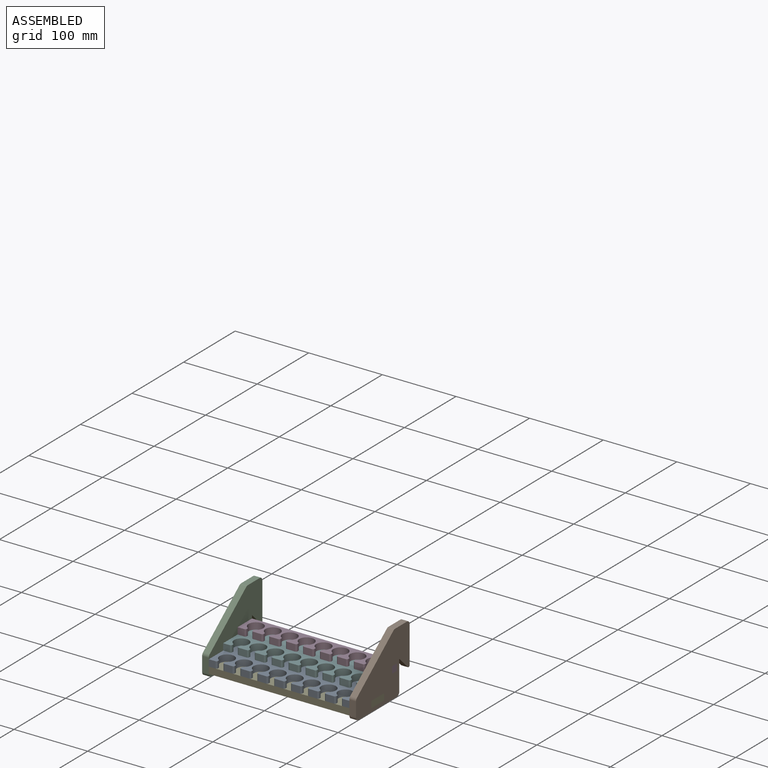
[diagram: assembled view]
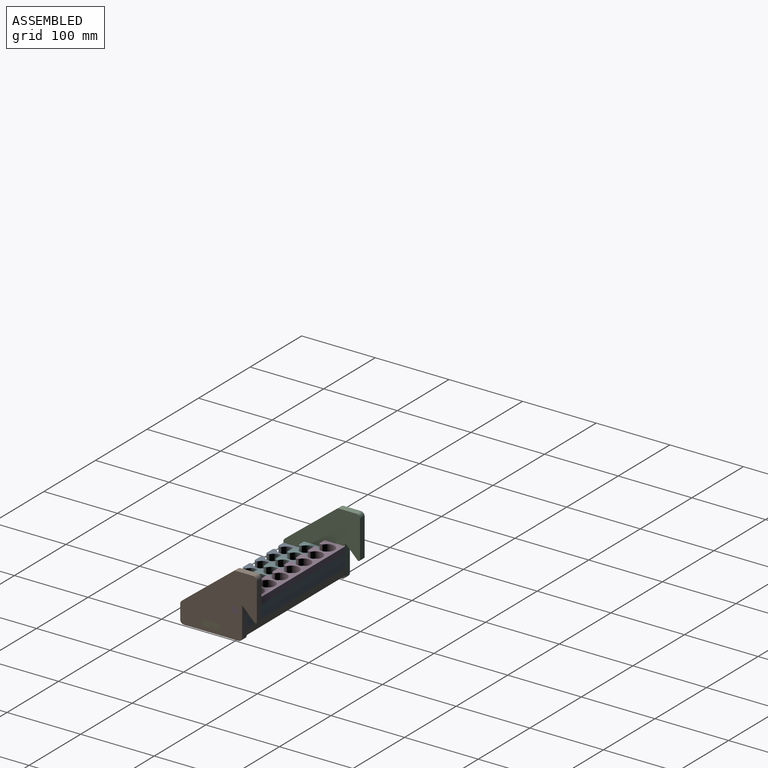
[diagram: assembled view, second angle]
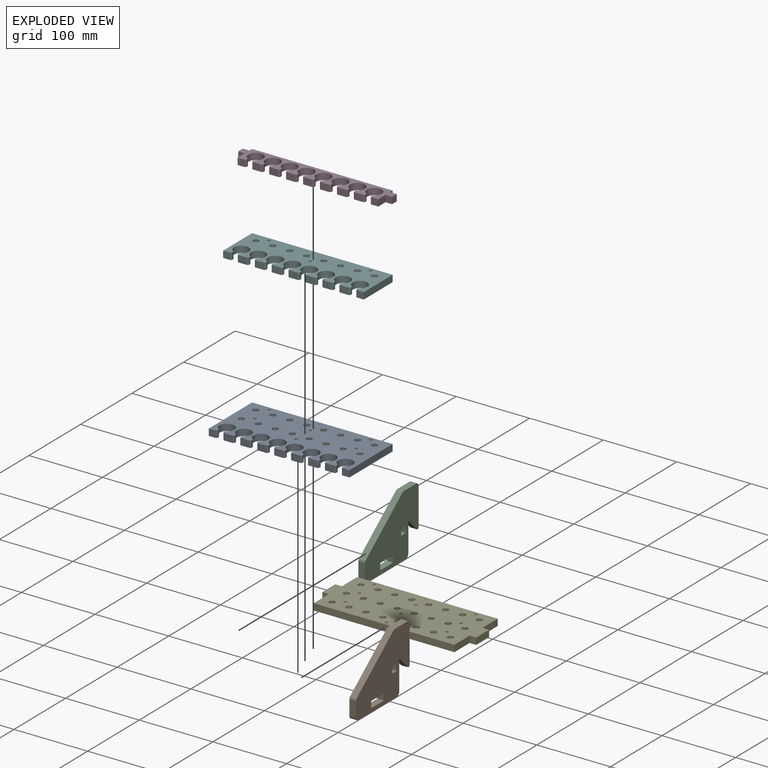
[diagram: exploded view]
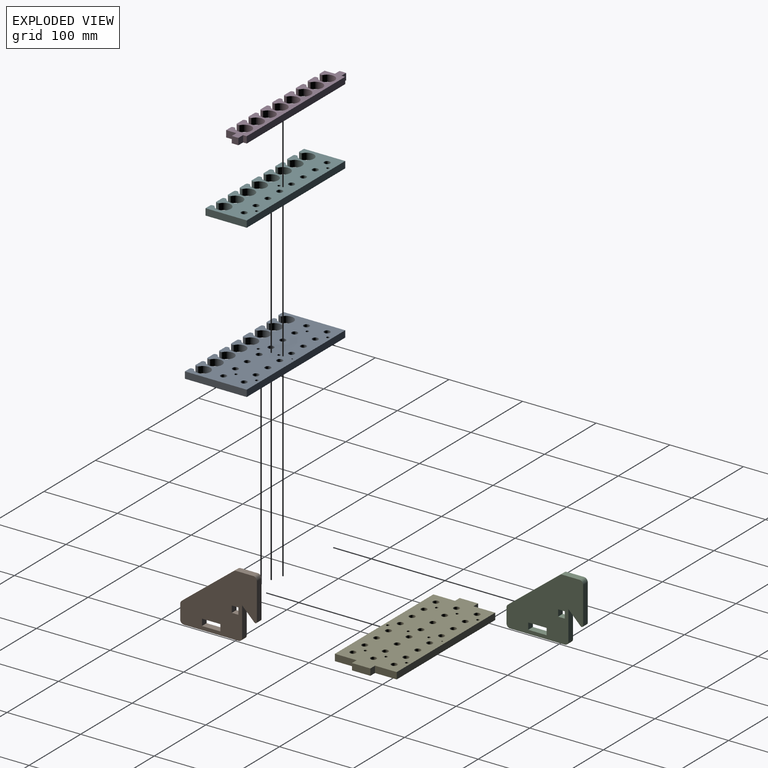
[diagram: exploded view, second angle]
ASSEMBLY  parts=6 mates=5
PART A: 99 faces, bbox 191x84x9 mm
  f0: plane 84x9mm, normal (1,0,0), area 756mm2, adj f1,f3,f4,f35
  f1: plane 191x84mm, normal (0,0,-1), area 12319.2mm2, adj f0,f2,f4,f5,f6,f7,f8,f9
  f2: plane 84x9mm, normal (-1,0,0), area 756mm2, adj f1,f3,f4,f27
  f3: plane 191x84mm, normal (0,0,1), area 12356.9mm2, adj f0,f2,f4,f5,f6,f7,f8,f9
  f4: plane 191x9mm, normal (0,1,0), area 1719mm2, adj f0,f1,f2,f3
  f5: cylinder r=4mm len=9mm, axis (0,0,1), area 226.2mm2, adj f1,f3
  f6: cylinder r=4mm len=9mm, axis (0,0,1), area 226.2mm2, adj f1,f3
  f7: cylinder r=4mm len=9mm, axis (0,0,1), area 226.2mm2, adj f1,f3
  f8: cylinder r=4mm len=9mm, axis (0,0,1), area 226.2mm2, adj f1,f3
  f9: cylinder r=4mm len=9mm, axis (0,0,1), area 226.2mm2, adj f1,f3
  f10: cylinder r=4mm len=9mm, axis (0,0,1), area 226.2mm2, adj f1,f3
  f11: cylinder r=4mm len=9mm, axis (0,0,1), area 226.2mm2, adj f1,f3
  f12: cylinder r=4mm len=9mm, axis (0,0,1), area 226.2mm2, adj f1,f3
  f13: cylinder r=2mm len=9mm, axis (0,0,1), area 113.1mm2, adj f1,f3
  f14: cylinder r=2mm len=9mm, axis (0,0,1), area 113.1mm2, adj f1,f3
  f15: cylinder r=2mm len=9mm, axis (0,0,1), area 113.1mm2, adj f1,f3
  f16: cylinder r=4mm len=9mm, axis (0,0,1), area 226.2mm2, adj f1,f3
  f17: cylinder r=4mm len=9mm, axis (0,0,1), area 226.2mm2, adj f1,f3
  f18: cylinder r=4mm len=9mm, axis (0,0,1), area 226.2mm2, adj f1,f3
  f19: cylinder r=4mm len=9mm, axis (0,0,1), area 226.2mm2, adj f1,f3
  f20: cylinder r=4mm len=9mm, axis (0,0,1), area 226.2mm2, adj f1,f3
  f21: cylinder r=4mm len=9mm, axis (0,0,1), area 226.2mm2, adj f1,f3
  f22: cylinder r=4mm len=9mm, axis (0,0,1), area 226.2mm2, adj f1,f3
  f23: cylinder r=4mm len=9mm, axis (0,0,1), area 226.2mm2, adj f1,f3
  f24: cylinder r=2mm len=9mm, axis (0,0,1), area 113.1mm2, adj f1,f3
  f25: cylinder r=2mm len=9mm, axis (0,0,1), area 113.1mm2, adj f1,f3
  f26: cylinder r=2mm len=9mm, axis (0,0,1), area 113.1mm2, adj f1,f3
  f27: plane 9x9mm, normal (0,-1,0), area 81mm2, adj f1,f2,f3,f96
  f28: plane 11x9mm, normal (0,-1,0), area 99mm2, adj f1,f3,f91,f95
  f29: plane 11x9mm, normal (0,-1,0), area 99mm2, adj f1,f3,f88,f92
  f30: plane 11x9mm, normal (0,-1,0), area 99mm2, adj f1,f3,f84,f87
  f31: plane 11x9mm, normal (0,-1,0), area 99mm2, adj f1,f3,f80,f83
  f32: plane 11x9mm, normal (0,-1,0), area 99mm2, adj f1,f3,f76,f79
  f33: plane 11x9mm, normal (0,-1,0), area 99mm2, adj f1,f3,f72,f75
  f34: plane 11x9mm, normal (0,-1,0), area 99mm2, adj f1,f3,f68,f71
  f35: plane 9x9mm, normal (0,-1,0), area 81mm2, adj f0,f1,f3,f67
  f36: cylinder r=10mm len=20mm, axis (0,0,1), area 471.2mm2, adj f1,f3,f66,f69
  f37: plane 9x1.61mm, normal (1,0,0), area 14.5mm2, adj f1,f3,f68,f69
  f38: plane 9x1.61mm, normal (-1,0,0), area 14.5mm2, adj f1,f3,f66,f67
  f39: cylinder r=10mm len=20mm, axis (0,0,1), area 471.2mm2, adj f1,f3,f70,f73
  f40: plane 9x1.61mm, normal (1,0,0), area 14.5mm2, adj f1,f3,f72,f73
  f41: plane 9x1.61mm, normal (-1,0,0), area 14.5mm2, adj f1,f3,f70,f71
  f42: cylinder r=10mm len=20mm, axis (0,0,1), area 471.2mm2, adj f1,f3,f74,f77
  f43: plane 9x1.61mm, normal (1,0,0), area 14.5mm2, adj f1,f3,f76,f77
  f44: plane 9x1.61mm, normal (-1,0,0), area 14.5mm2, adj f1,f3,f74,f75
  f45: cylinder r=10mm len=20mm, axis (0,0,1), area 471.2mm2, adj f1,f3,f78,f81
  f46: plane 9x1.61mm, normal (1,0,0), area 14.5mm2, adj f1,f3,f80,f81
  f47: plane 9x1.61mm, normal (-1,0,0), area 14.5mm2, adj f1,f3,f78,f79
  f48: cylinder r=10mm len=20mm, axis (0,0,1), area 471.2mm2, adj f1,f3,f82,f85
  f49: plane 9x1.61mm, normal (1,0,0), area 14.5mm2, adj f1,f3,f84,f85
  f50: plane 9x1.61mm, normal (-1,0,0), area 14.5mm2, adj f1,f3,f82,f83
  f51: cylinder r=10mm len=20mm, axis (0,0,1), area 471.2mm2, adj f1,f3,f86,f89
  f52: plane 9x1.61mm, normal (1,0,0), area 14.5mm2, adj f1,f3,f88,f89
  f53: plane 9x1.61mm, normal (-1,0,0), area 14.5mm2, adj f1,f3,f86,f87
  f54: cylinder r=10mm len=20mm, axis (0,0,1), area 471.2mm2, adj f1,f3,f90,f93
  f55: plane 9x1.61mm, normal (1,0,0), area 14.5mm2, adj f1,f3,f90,f91
  f56: plane 9x1.61mm, normal (-1,0,0), area 14.5mm2, adj f1,f3,f92,f93
  f57: cylinder r=10mm len=20mm, axis (0,0,1), area 471.2mm2, adj f1,f3,f94,f97
  f58: plane 9x1.61mm, normal (1,0,0), area 14.5mm2, adj f1,f3,f96,f97
  f59: plane 9x1.61mm, normal (-1,0,0), area 14.5mm2, adj f1,f3,f94,f95
  f60: cone r=0mm half-angle=59deg, axis (0,0,-1), area 14.7mm2, adj f61
  f61: cylinder r=2mm len=5mm, axis (0,0,-1), area 62.8mm2, adj f1,f60
  f62: cone r=0mm half-angle=59deg, axis (0,0,-1), area 14.7mm2, adj f63
  f63: cylinder r=2mm len=5mm, axis (0,0,-1), area 62.8mm2, adj f1,f62
  f64: cone r=0mm half-angle=59deg, axis (0,0,-1), area 14.7mm2, adj f65
  f65: cylinder r=2mm len=5mm, axis (0,0,-1), area 62.8mm2, adj f1,f64
  f66: cylinder r=2mm len=9mm, axis (0,0,1), area 18.8mm2, adj f1,f3,f36,f38
  f67: cylinder r=2mm len=9mm, axis (0,0,-1), area 28.3mm2, adj f1,f3,f35,f38
  f68: cylinder r=2mm len=9mm, axis (0,0,-1), area 28.3mm2, adj f1,f3,f34,f37
  f69: cylinder r=2mm len=9mm, axis (0,0,1), area 18.8mm2, adj f1,f3,f36,f37
  f70: cylinder r=2mm len=9mm, axis (0,0,1), area 18.8mm2, adj f1,f3,f39,f41
  f71: cylinder r=2mm len=9mm, axis (0,0,-1), area 28.3mm2, adj f1,f3,f34,f41
  f72: cylinder r=2mm len=9mm, axis (0,0,-1), area 28.3mm2, adj f1,f3,f33,f40
  f73: cylinder r=2mm len=9mm, axis (0,0,1), area 18.8mm2, adj f1,f3,f39,f40
  f74: cylinder r=2mm len=9mm, axis (0,0,1), area 18.8mm2, adj f1,f3,f42,f44
  f75: cylinder r=2mm len=9mm, axis (0,0,-1), area 28.3mm2, adj f1,f3,f33,f44
  f76: cylinder r=2mm len=9mm, axis (0,0,-1), area 28.3mm2, adj f1,f3,f32,f43
  f77: cylinder r=2mm len=9mm, axis (0,0,1), area 18.8mm2, adj f1,f3,f42,f43
  f78: cylinder r=2mm len=9mm, axis (0,0,1), area 18.8mm2, adj f1,f3,f45,f47
  f79: cylinder r=2mm len=9mm, axis (0,0,-1), area 28.3mm2, adj f1,f3,f32,f47
  f80: cylinder r=2mm len=9mm, axis (0,0,-1), area 28.3mm2, adj f1,f3,f31,f46
  f81: cylinder r=2mm len=9mm, axis (0,0,1), area 18.8mm2, adj f1,f3,f45,f46
  f82: cylinder r=2mm len=9mm, axis (0,0,1), area 18.8mm2, adj f1,f3,f48,f50
  f83: cylinder r=2mm len=9mm, axis (0,0,-1), area 28.3mm2, adj f1,f3,f31,f50
  f84: cylinder r=2mm len=9mm, axis (0,0,-1), area 28.3mm2, adj f1,f3,f30,f49
  f85: cylinder r=2mm len=9mm, axis (0,0,1), area 18.8mm2, adj f1,f3,f48,f49
  f86: cylinder r=2mm len=9mm, axis (0,0,1), area 18.8mm2, adj f1,f3,f51,f53
  f87: cylinder r=2mm len=9mm, axis (0,0,-1), area 28.3mm2, adj f1,f3,f30,f53
  f88: cylinder r=2mm len=9mm, axis (0,0,-1), area 28.3mm2, adj f1,f3,f29,f52
  f89: cylinder r=2mm len=9mm, axis (0,0,1), area 18.8mm2, adj f1,f3,f51,f52
  f90: cylinder r=2mm len=9mm, axis (0,0,1), area 18.8mm2, adj f1,f3,f54,f55
  f91: cylinder r=2mm len=9mm, axis (0,0,-1), area 28.3mm2, adj f1,f3,f28,f55
  f92: cylinder r=2mm len=9mm, axis (0,0,-1), area 28.3mm2, adj f1,f3,f29,f56
  f93: cylinder r=2mm len=9mm, axis (0,0,1), area 18.8mm2, adj f1,f3,f54,f56
  f94: cylinder r=2mm len=9mm, axis (0,0,1), area 18.8mm2, adj f1,f3,f57,f59
  f95: cylinder r=2mm len=9mm, axis (0,0,-1), area 28.3mm2, adj f1,f3,f28,f59
  f96: cylinder r=2mm len=9mm, axis (0,0,-1), area 28.3mm2, adj f1,f3,f27,f58
  f97: cylinder r=2mm len=9mm, axis (0,0,1), area 18.8mm2, adj f1,f3,f57,f58
  f98: cylinder r=1mm len=9mm, axis (0,0,-1), area 56.5mm2, adj f1,f3
PART B: 23 faces, bbox 104x85x9 mm
  f0: plane 23.27x9mm, normal (0,1,0), area 209.5mm2, adj f15,f16,f17,f21
  f1: plane 50.17x9mm, normal (-1,0,0), area 451.5mm2, adj f15,f16,f17,f22
  f2: plane 16.59x16.59mm, normal (0.71,-0.71,0), area 211.1mm2, adj f3,f15,f16,f22
  f3: plane 40x9mm, normal (-1,0,0), area 360mm2, adj f2,f15,f16,f18
  f4: plane 74x9mm, normal (0,-1,0), area 666mm2, adj f15,f16,f18,f19
  f5: plane 19.57x9mm, normal (1,0,0), area 176.1mm2, adj f15,f16,f19,f20
  f6: plane 9x9mm, normal (1,0,0), area 81mm2, adj f7,f12,f15,f16
  f7: plane 9x9mm, normal (0,-1,0), area 81mm2, adj f6,f8,f15,f16
  f8: plane 9x9mm, normal (-1,0,0), area 81mm2, adj f7,f12,f15,f16
  f9: plane 25x9mm, normal (0,-1,0), area 225mm2, adj f10,f13,f15,f16
  f10: plane 9x9mm, normal (-1,0,0), area 81mm2, adj f9,f11,f15,f16
  f11: plane 25x9mm, normal (0,1,0), area 225mm2, adj f10,f13,f15,f16
  f12: plane 9x9mm, normal (0,1,0), area 81mm2, adj f6,f8,f15,f16
  f13: plane 9x9mm, normal (1,0,0), area 81mm2, adj f9,f11,f15,f16
  f14: plane 70.73x55.43mm, normal (0.62,0.79,0), area 808.8mm2, adj f15,f16,f20,f21
  f15: plane 104x85mm, normal (0,0,1), area 5665.8mm2, adj f0,f1,f2,f3,f4,f5,f6,f7
  f16: plane 104x85mm, normal (0,0,-1), area 5665.8mm2, adj f0,f1,f2,f3,f4,f5,f6,f7
  f17: cylinder r=5mm len=9mm, axis (0,0,-1), area 70.7mm2, adj f0,f1,f15,f16
  f18: cylinder r=5mm len=9mm, axis (0,0,-1), area 70.7mm2, adj f3,f4,f15,f16
  f19: cylinder r=5mm len=9mm, axis (0,0,-1), area 70.7mm2, adj f4,f5,f15,f16
  f20: cylinder r=5mm len=9mm, axis (0,0,-1), area 40.8mm2, adj f5,f14,f15,f16
  f21: cylinder r=5mm len=9mm, axis (0,0,-1), area 29.9mm2, adj f0,f14,f15,f16
  f22: cylinder r=2mm len=9mm, axis (0,0,-1), area 42.4mm2, adj f1,f2,f15,f16
PART C: same geometry as B
PART D: 84 faces, bbox 209x28x9 mm
  f0: plane 9x5mm, normal (-1,0,0), area 45mm2, adj f11,f14,f15,f81
  f1: plane 9x5mm, normal (1,0,0), area 45mm2, adj f11,f14,f15,f78
  f2: plane 9x9mm, normal (0,-1,0), area 81mm2, adj f12,f14,f15,f76
  f3: plane 11x9mm, normal (0,-1,0), area 99mm2, adj f14,f15,f71,f75
  f4: plane 11x9mm, normal (0,-1,0), area 99mm2, adj f14,f15,f68,f72
  f5: plane 11x9mm, normal (0,-1,0), area 99mm2, adj f14,f15,f64,f67
  f6: plane 11x9mm, normal (0,-1,0), area 99mm2, adj f14,f15,f60,f63
  f7: plane 11x9mm, normal (0,-1,0), area 99mm2, adj f14,f15,f56,f59
  f8: plane 11x9mm, normal (0,-1,0), area 99mm2, adj f14,f15,f52,f55
  f9: plane 11x9mm, normal (0,-1,0), area 99mm2, adj f14,f15,f48,f51
  f10: plane 14x9mm, normal (1,0,0), area 126mm2, adj f13,f14,f15,f79
  f11: plane 191x9mm, normal (0,1,0), area 1719mm2, adj f0,f1,f14,f15
  f12: plane 14x9mm, normal (-1,0,0), area 126mm2, adj f2,f14,f15,f82
  f13: plane 9x9mm, normal (0,-1,0), area 81mm2, adj f10,f14,f15,f47
  f14: plane 209x28mm, normal (0,0,1), area 2705.7mm2, adj f0,f1,f2,f3,f4,f5,f6,f7
  f15: plane 209x28mm, normal (0,0,-1), area 2668mm2, adj f0,f1,f2,f3,f4,f5,f6,f7
  f16: cylinder r=10mm len=20mm, axis (0,0,1), area 471.2mm2, adj f14,f15,f46,f49
  f17: plane 9x1.61mm, normal (1,0,0), area 14.5mm2, adj f14,f15,f48,f49
  f18: plane 9x1.61mm, normal (-1,0,0), area 14.5mm2, adj f14,f15,f46,f47
  f19: cylinder r=10mm len=20mm, axis (0,0,1), area 471.2mm2, adj f14,f15,f50,f53
  f20: plane 9x1.61mm, normal (1,0,0), area 14.5mm2, adj f14,f15,f52,f53
  f21: plane 9x1.61mm, normal (-1,0,0), area 14.5mm2, adj f14,f15,f50,f51
  f22: cylinder r=10mm len=20mm, axis (0,0,1), area 471.2mm2, adj f14,f15,f54,f57
  f23: plane 9x1.61mm, normal (1,0,0), area 14.5mm2, adj f14,f15,f56,f57
  f24: plane 9x1.61mm, normal (-1,0,0), area 14.5mm2, adj f14,f15,f54,f55
  f25: cylinder r=10mm len=20mm, axis (0,0,1), area 471.2mm2, adj f14,f15,f58,f61
  f26: plane 9x1.61mm, normal (1,0,0), area 14.5mm2, adj f14,f15,f60,f61
  f27: plane 9x1.61mm, normal (-1,0,0), area 14.5mm2, adj f14,f15,f58,f59
  f28: cylinder r=10mm len=20mm, axis (0,0,1), area 471.2mm2, adj f14,f15,f62,f65
  f29: plane 9x1.61mm, normal (1,0,0), area 14.5mm2, adj f14,f15,f64,f65
  f30: plane 9x1.61mm, normal (-1,0,0), area 14.5mm2, adj f14,f15,f62,f63
  f31: cylinder r=10mm len=20mm, axis (0,0,1), area 471.2mm2, adj f14,f15,f66,f69
  f32: plane 9x1.61mm, normal (1,0,0), area 14.5mm2, adj f14,f15,f68,f69
  f33: plane 9x1.61mm, normal (-1,0,0), area 14.5mm2, adj f14,f15,f66,f67
  f34: cylinder r=10mm len=20mm, axis (0,0,1), area 471.2mm2, adj f14,f15,f70,f73
  f35: plane 9x1.61mm, normal (1,0,0), area 14.5mm2, adj f14,f15,f70,f71
  f36: plane 9x1.61mm, normal (-1,0,0), area 14.5mm2, adj f14,f15,f72,f73
  f37: cylinder r=10mm len=20mm, axis (0,0,1), area 471.2mm2, adj f14,f15,f74,f77
  f38: plane 9x1.61mm, normal (1,0,0), area 14.5mm2, adj f14,f15,f76,f77
  f39: plane 9x1.61mm, normal (-1,0,0), area 14.5mm2, adj f14,f15,f74,f75
  f40: cone r=0mm half-angle=59deg, axis (0,0,-1), area 14.7mm2, adj f41
  f41: cylinder r=2mm len=5mm, axis (0,0,-1), area 62.8mm2, adj f15,f40
  f42: cone r=0mm half-angle=59deg, axis (0,0,-1), area 14.7mm2, adj f43
  f43: cylinder r=2mm len=5mm, axis (0,0,-1), area 62.8mm2, adj f15,f42
  f44: cone r=0mm half-angle=59deg, axis (0,0,-1), area 14.7mm2, adj f45
  f45: cylinder r=2mm len=5mm, axis (0,0,-1), area 62.8mm2, adj f15,f44
  f46: cylinder r=2mm len=9mm, axis (0,0,1), area 18.8mm2, adj f14,f15,f16,f18
  f47: cylinder r=2mm len=9mm, axis (0,0,-1), area 28.3mm2, adj f13,f14,f15,f18
  f48: cylinder r=2mm len=9mm, axis (0,0,-1), area 28.3mm2, adj f9,f14,f15,f17
  f49: cylinder r=2mm len=9mm, axis (0,0,1), area 18.8mm2, adj f14,f15,f16,f17
  f50: cylinder r=2mm len=9mm, axis (0,0,1), area 18.8mm2, adj f14,f15,f19,f21
  f51: cylinder r=2mm len=9mm, axis (0,0,-1), area 28.3mm2, adj f9,f14,f15,f21
  f52: cylinder r=2mm len=9mm, axis (0,0,-1), area 28.3mm2, adj f8,f14,f15,f20
  f53: cylinder r=2mm len=9mm, axis (0,0,1), area 18.8mm2, adj f14,f15,f19,f20
  f54: cylinder r=2mm len=9mm, axis (0,0,1), area 18.8mm2, adj f14,f15,f22,f24
  f55: cylinder r=2mm len=9mm, axis (0,0,-1), area 28.3mm2, adj f8,f14,f15,f24
  f56: cylinder r=2mm len=9mm, axis (0,0,-1), area 28.3mm2, adj f7,f14,f15,f23
  f57: cylinder r=2mm len=9mm, axis (0,0,1), area 18.8mm2, adj f14,f15,f22,f23
  f58: cylinder r=2mm len=9mm, axis (0,0,1), area 18.8mm2, adj f14,f15,f25,f27
  f59: cylinder r=2mm len=9mm, axis (0,0,-1), area 28.3mm2, adj f7,f14,f15,f27
  f60: cylinder r=2mm len=9mm, axis (0,0,-1), area 28.3mm2, adj f6,f14,f15,f26
  f61: cylinder r=2mm len=9mm, axis (0,0,1), area 18.8mm2, adj f14,f15,f25,f26
  f62: cylinder r=2mm len=9mm, axis (0,0,1), area 18.8mm2, adj f14,f15,f28,f30
  f63: cylinder r=2mm len=9mm, axis (0,0,-1), area 28.3mm2, adj f6,f14,f15,f30
  f64: cylinder r=2mm len=9mm, axis (0,0,-1), area 28.3mm2, adj f5,f14,f15,f29
  f65: cylinder r=2mm len=9mm, axis (0,0,1), area 18.8mm2, adj f14,f15,f28,f29
  f66: cylinder r=2mm len=9mm, axis (0,0,1), area 18.8mm2, adj f14,f15,f31,f33
  f67: cylinder r=2mm len=9mm, axis (0,0,-1), area 28.3mm2, adj f5,f14,f15,f33
  f68: cylinder r=2mm len=9mm, axis (0,0,-1), area 28.3mm2, adj f4,f14,f15,f32
  f69: cylinder r=2mm len=9mm, axis (0,0,1), area 18.8mm2, adj f14,f15,f31,f32
  f70: cylinder r=2mm len=9mm, axis (0,0,1), area 18.8mm2, adj f14,f15,f34,f35
  f71: cylinder r=2mm len=9mm, axis (0,0,-1), area 28.3mm2, adj f3,f14,f15,f35
  f72: cylinder r=2mm len=9mm, axis (0,0,-1), area 28.3mm2, adj f4,f14,f15,f36
  f73: cylinder r=2mm len=9mm, axis (0,0,1), area 18.8mm2, adj f14,f15,f34,f36
  f74: cylinder r=2mm len=9mm, axis (0,0,1), area 18.8mm2, adj f14,f15,f37,f39
  f75: cylinder r=2mm len=9mm, axis (0,0,-1), area 28.3mm2, adj f3,f14,f15,f39
  f76: cylinder r=2mm len=9mm, axis (0,0,-1), area 28.3mm2, adj f2,f14,f15,f38
  f77: cylinder r=2mm len=9mm, axis (0,0,1), area 18.8mm2, adj f14,f15,f37,f38
  f78: plane 9x9mm, normal (0,1,0), area 81mm2, adj f1,f14,f15,f80
  f79: plane 9x9mm, normal (0,-1,0), area 81mm2, adj f10,f14,f15,f80
  f80: plane 9x9mm, normal (1,0,0), area 81mm2, adj f14,f15,f78,f79
  f81: plane 9x9mm, normal (0,1,0), area 81mm2, adj f0,f14,f15,f83
  f82: plane 9x9mm, normal (0,-1,0), area 81mm2, adj f12,f14,f15,f83
  f83: plane 9x9mm, normal (-1,0,0), area 81mm2, adj f14,f15,f81,f82
PART E: 48 faces, bbox 209x84x9 mm
  f0: plane 29.5x9mm, normal (-1,0,0), area 265.5mm2, adj f3,f5,f17,f45
  f1: plane 29.5x9mm, normal (1,0,0), area 265.5mm2, adj f3,f5,f17,f42
  f2: plane 29.5x9mm, normal (1,0,0), area 265.5mm2, adj f3,f5,f29,f41
  f3: plane 209x84mm, normal (0,0,-1), area 15171.4mm2, adj f0,f1,f2,f4,f6,f7,f8,f9
  f4: plane 29.5x9mm, normal (-1,0,0), area 265.5mm2, adj f3,f5,f29,f44
  f5: plane 209x84mm, normal (0,0,1), area 15171.4mm2, adj f0,f1,f2,f4,f6,f7,f8,f9
  f6: cylinder r=4mm len=9mm, axis (0,0,1), area 226.2mm2, adj f3,f5
  f7: cylinder r=4mm len=9mm, axis (0,0,1), area 226.2mm2, adj f3,f5
  f8: cylinder r=4mm len=9mm, axis (0,0,1), area 226.2mm2, adj f3,f5
  f9: cylinder r=4mm len=9mm, axis (0,0,1), area 226.2mm2, adj f3,f5
  f10: cylinder r=4mm len=9mm, axis (0,0,1), area 226.2mm2, adj f3,f5
  f11: cylinder r=4mm len=9mm, axis (0,0,1), area 226.2mm2, adj f3,f5
  f12: cylinder r=4mm len=9mm, axis (0,0,1), area 226.2mm2, adj f3,f5
  f13: cylinder r=4mm len=9mm, axis (0,0,1), area 226.2mm2, adj f3,f5
  f14: cylinder r=2mm len=9mm, axis (0,0,1), area 113.1mm2, adj f3,f5
  f15: cylinder r=2mm len=9mm, axis (0,0,1), area 113.1mm2, adj f3,f5
  f16: cylinder r=2mm len=9mm, axis (0,0,1), area 113.1mm2, adj f3,f5
  f17: plane 191x9mm, normal (0,-1,0), area 1719mm2, adj f0,f1,f3,f5
  f18: cylinder r=4mm len=9mm, axis (0,0,1), area 226.2mm2, adj f3,f5
  f19: cylinder r=4mm len=9mm, axis (0,0,1), area 226.2mm2, adj f3,f5
  f20: cylinder r=4mm len=9mm, axis (0,0,1), area 226.2mm2, adj f3,f5
  f21: cylinder r=4mm len=9mm, axis (0,0,1), area 226.2mm2, adj f3,f5
  f22: cylinder r=4mm len=9mm, axis (0,0,1), area 226.2mm2, adj f3,f5
  f23: cylinder r=4mm len=9mm, axis (0,0,1), area 226.2mm2, adj f3,f5
  f24: cylinder r=4mm len=9mm, axis (0,0,1), area 226.2mm2, adj f3,f5
  f25: cylinder r=4mm len=9mm, axis (0,0,1), area 226.2mm2, adj f3,f5
  f26: cylinder r=2mm len=9mm, axis (0,0,1), area 113.1mm2, adj f3,f5
  f27: cylinder r=2mm len=9mm, axis (0,0,1), area 113.1mm2, adj f3,f5
  f28: cylinder r=2mm len=9mm, axis (0,0,1), area 113.1mm2, adj f3,f5
  f29: plane 191x9mm, normal (0,1,0), area 1719mm2, adj f2,f3,f4,f5
  f30: cylinder r=4mm len=9mm, axis (0,0,1), area 226.2mm2, adj f3,f5
  f31: cylinder r=4mm len=9mm, axis (0,0,1), area 226.2mm2, adj f3,f5
  f32: cylinder r=4mm len=9mm, axis (0,0,1), area 226.2mm2, adj f3,f5
  f33: cylinder r=4mm len=9mm, axis (0,0,1), area 226.2mm2, adj f3,f5
  f34: cylinder r=4mm len=9mm, axis (0,0,1), area 226.2mm2, adj f3,f5
  f35: cylinder r=4mm len=9mm, axis (0,0,1), area 226.2mm2, adj f3,f5
  f36: cylinder r=4mm len=9mm, axis (0,0,1), area 226.2mm2, adj f3,f5
  f37: cylinder r=4mm len=9mm, axis (0,0,1), area 226.2mm2, adj f3,f5
  f38: cylinder r=2mm len=9mm, axis (0,0,1), area 113.1mm2, adj f3,f5
  f39: cylinder r=2mm len=9mm, axis (0,0,1), area 113.1mm2, adj f3,f5
  f40: cylinder r=2mm len=9mm, axis (0,0,1), area 113.1mm2, adj f3,f5
  f41: plane 9x9mm, normal (0,1,0), area 81mm2, adj f2,f3,f5,f43
  f42: plane 9x9mm, normal (0,-1,0), area 81mm2, adj f1,f3,f5,f43
  f43: plane 25x9mm, normal (1,0,0), area 225mm2, adj f3,f5,f41,f42
  f44: plane 9x9mm, normal (0,1,0), area 81mm2, adj f3,f4,f5,f46
  f45: plane 9x9mm, normal (0,-1,0), area 81mm2, adj f0,f3,f5,f46
  f46: plane 25x9mm, normal (-1,0,0), area 225mm2, adj f3,f5,f44,f45
  f47: cylinder r=1mm len=9mm, axis (0,0,-1), area 56.5mm2, adj f3,f5
PART F: 87 faces, bbox 191x56x9 mm
  f0: plane 56x9mm, normal (1,0,0), area 504mm2, adj f1,f3,f4,f24
  f1: plane 191x56mm, normal (0,0,-1), area 7414.1mm2, adj f0,f2,f4,f5,f6,f7,f8,f9
  f2: plane 56x9mm, normal (-1,0,0), area 504mm2, adj f1,f3,f4,f16
  f3: plane 191x56mm, normal (0,0,1), area 7451.8mm2, adj f0,f2,f4,f5,f6,f7,f8,f9
  f4: plane 191x9mm, normal (0,1,0), area 1719mm2, adj f0,f1,f2,f3
  f5: cylinder r=4mm len=9mm, axis (0,0,1), area 226.2mm2, adj f1,f3
  f6: cylinder r=4mm len=9mm, axis (0,0,1), area 226.2mm2, adj f1,f3
  f7: cylinder r=4mm len=9mm, axis (0,0,1), area 226.2mm2, adj f1,f3
  f8: cylinder r=4mm len=9mm, axis (0,0,1), area 226.2mm2, adj f1,f3
  f9: cylinder r=4mm len=9mm, axis (0,0,1), area 226.2mm2, adj f1,f3
  f10: cylinder r=4mm len=9mm, axis (0,0,1), area 226.2mm2, adj f1,f3
  f11: cylinder r=4mm len=9mm, axis (0,0,1), area 226.2mm2, adj f1,f3
  f12: cylinder r=4mm len=9mm, axis (0,0,1), area 226.2mm2, adj f1,f3
  f13: cylinder r=2mm len=9mm, axis (0,0,1), area 113.1mm2, adj f1,f3
  f14: cylinder r=2mm len=9mm, axis (0,0,1), area 113.1mm2, adj f1,f3
  f15: cylinder r=2mm len=9mm, axis (0,0,1), area 113.1mm2, adj f1,f3
  f16: plane 9x9mm, normal (0,-1,0), area 81mm2, adj f1,f2,f3,f85
  f17: plane 11x9mm, normal (0,-1,0), area 99mm2, adj f1,f3,f80,f84
  f18: plane 11x9mm, normal (0,-1,0), area 99mm2, adj f1,f3,f77,f81
  f19: plane 11x9mm, normal (0,-1,0), area 99mm2, adj f1,f3,f73,f76
  f20: plane 11x9mm, normal (0,-1,0), area 99mm2, adj f1,f3,f69,f72
  f21: plane 11x9mm, normal (0,-1,0), area 99mm2, adj f1,f3,f65,f68
  f22: plane 11x9mm, normal (0,-1,0), area 99mm2, adj f1,f3,f61,f64
  f23: plane 11x9mm, normal (0,-1,0), area 99mm2, adj f1,f3,f57,f60
  f24: plane 9x9mm, normal (0,-1,0), area 81mm2, adj f0,f1,f3,f56
  f25: cylinder r=10mm len=20mm, axis (0,0,1), area 471.2mm2, adj f1,f3,f55,f58
  f26: plane 9x1.61mm, normal (1,0,0), area 14.5mm2, adj f1,f3,f57,f58
  f27: plane 9x1.61mm, normal (-1,0,0), area 14.5mm2, adj f1,f3,f55,f56
  f28: cylinder r=10mm len=20mm, axis (0,0,1), area 471.2mm2, adj f1,f3,f59,f62
  f29: plane 9x1.61mm, normal (1,0,0), area 14.5mm2, adj f1,f3,f61,f62
  f30: plane 9x1.61mm, normal (-1,0,0), area 14.5mm2, adj f1,f3,f59,f60
  f31: cylinder r=10mm len=20mm, axis (0,0,1), area 471.2mm2, adj f1,f3,f63,f66
  f32: plane 9x1.61mm, normal (1,0,0), area 14.5mm2, adj f1,f3,f65,f66
  f33: plane 9x1.61mm, normal (-1,0,0), area 14.5mm2, adj f1,f3,f63,f64
  f34: cylinder r=10mm len=20mm, axis (0,0,1), area 471.2mm2, adj f1,f3,f67,f70
  f35: plane 9x1.61mm, normal (1,0,0), area 14.5mm2, adj f1,f3,f69,f70
  f36: plane 9x1.61mm, normal (-1,0,0), area 14.5mm2, adj f1,f3,f67,f68
  f37: cylinder r=10mm len=20mm, axis (0,0,1), area 471.2mm2, adj f1,f3,f71,f74
  f38: plane 9x1.61mm, normal (1,0,0), area 14.5mm2, adj f1,f3,f73,f74
  f39: plane 9x1.61mm, normal (-1,0,0), area 14.5mm2, adj f1,f3,f71,f72
  f40: cylinder r=10mm len=20mm, axis (0,0,1), area 471.2mm2, adj f1,f3,f75,f78
  f41: plane 9x1.61mm, normal (1,0,0), area 14.5mm2, adj f1,f3,f77,f78
  f42: plane 9x1.61mm, normal (-1,0,0), area 14.5mm2, adj f1,f3,f75,f76
  f43: cylinder r=10mm len=20mm, axis (0,0,1), area 471.2mm2, adj f1,f3,f79,f82
  f44: plane 9x1.61mm, normal (1,0,0), area 14.5mm2, adj f1,f3,f79,f80
  f45: plane 9x1.61mm, normal (-1,0,0), area 14.5mm2, adj f1,f3,f81,f82
  f46: cylinder r=10mm len=20mm, axis (0,0,1), area 471.2mm2, adj f1,f3,f83,f86
  f47: plane 9x1.61mm, normal (1,0,0), area 14.5mm2, adj f1,f3,f85,f86
  f48: plane 9x1.61mm, normal (-1,0,0), area 14.5mm2, adj f1,f3,f83,f84
  f49: cone r=0mm half-angle=59deg, axis (0,0,-1), area 14.7mm2, adj f50
  f50: cylinder r=2mm len=5mm, axis (0,0,-1), area 62.8mm2, adj f1,f49
  f51: cone r=0mm half-angle=59deg, axis (0,0,-1), area 14.7mm2, adj f52
  f52: cylinder r=2mm len=5mm, axis (0,0,-1), area 62.8mm2, adj f1,f51
  f53: cone r=0mm half-angle=59deg, axis (0,0,-1), area 14.7mm2, adj f54
  f54: cylinder r=2mm len=5mm, axis (0,0,-1), area 62.8mm2, adj f1,f53
  f55: cylinder r=2mm len=9mm, axis (0,0,1), area 18.8mm2, adj f1,f3,f25,f27
  f56: cylinder r=2mm len=9mm, axis (0,0,-1), area 28.3mm2, adj f1,f3,f24,f27
  f57: cylinder r=2mm len=9mm, axis (0,0,-1), area 28.3mm2, adj f1,f3,f23,f26
  f58: cylinder r=2mm len=9mm, axis (0,0,1), area 18.8mm2, adj f1,f3,f25,f26
  f59: cylinder r=2mm len=9mm, axis (0,0,1), area 18.8mm2, adj f1,f3,f28,f30
  f60: cylinder r=2mm len=9mm, axis (0,0,-1), area 28.3mm2, adj f1,f3,f23,f30
  f61: cylinder r=2mm len=9mm, axis (0,0,-1), area 28.3mm2, adj f1,f3,f22,f29
  f62: cylinder r=2mm len=9mm, axis (0,0,1), area 18.8mm2, adj f1,f3,f28,f29
  f63: cylinder r=2mm len=9mm, axis (0,0,1), area 18.8mm2, adj f1,f3,f31,f33
  f64: cylinder r=2mm len=9mm, axis (0,0,-1), area 28.3mm2, adj f1,f3,f22,f33
  f65: cylinder r=2mm len=9mm, axis (0,0,-1), area 28.3mm2, adj f1,f3,f21,f32
  f66: cylinder r=2mm len=9mm, axis (0,0,1), area 18.8mm2, adj f1,f3,f31,f32
  f67: cylinder r=2mm len=9mm, axis (0,0,1), area 18.8mm2, adj f1,f3,f34,f36
  f68: cylinder r=2mm len=9mm, axis (0,0,-1), area 28.3mm2, adj f1,f3,f21,f36
  f69: cylinder r=2mm len=9mm, axis (0,0,-1), area 28.3mm2, adj f1,f3,f20,f35
  f70: cylinder r=2mm len=9mm, axis (0,0,1), area 18.8mm2, adj f1,f3,f34,f35
  f71: cylinder r=2mm len=9mm, axis (0,0,1), area 18.8mm2, adj f1,f3,f37,f39
  f72: cylinder r=2mm len=9mm, axis (0,0,-1), area 28.3mm2, adj f1,f3,f20,f39
  f73: cylinder r=2mm len=9mm, axis (0,0,-1), area 28.3mm2, adj f1,f3,f19,f38
  f74: cylinder r=2mm len=9mm, axis (0,0,1), area 18.8mm2, adj f1,f3,f37,f38
  f75: cylinder r=2mm len=9mm, axis (0,0,1), area 18.8mm2, adj f1,f3,f40,f42
  f76: cylinder r=2mm len=9mm, axis (0,0,-1), area 28.3mm2, adj f1,f3,f19,f42
  f77: cylinder r=2mm len=9mm, axis (0,0,-1), area 28.3mm2, adj f1,f3,f18,f41
  f78: cylinder r=2mm len=9mm, axis (0,0,1), area 18.8mm2, adj f1,f3,f40,f41
  f79: cylinder r=2mm len=9mm, axis (0,0,1), area 18.8mm2, adj f1,f3,f43,f44
  f80: cylinder r=2mm len=9mm, axis (0,0,-1), area 28.3mm2, adj f1,f3,f17,f44
  f81: cylinder r=2mm len=9mm, axis (0,0,-1), area 28.3mm2, adj f1,f3,f18,f45
  f82: cylinder r=2mm len=9mm, axis (0,0,1), area 18.8mm2, adj f1,f3,f43,f45
  f83: cylinder r=2mm len=9mm, axis (0,0,1), area 18.8mm2, adj f1,f3,f46,f48
  f84: cylinder r=2mm len=9mm, axis (0,0,-1), area 28.3mm2, adj f1,f3,f17,f48
  f85: cylinder r=2mm len=9mm, axis (0,0,-1), area 28.3mm2, adj f1,f3,f16,f47
  f86: cylinder r=2mm len=9mm, axis (0,0,1), area 18.8mm2, adj f1,f3,f46,f47
PLACE A t=(0,-57.53,-18)mm
PLACE B rot(axis=(0.58,-0.58,-0.58),120deg) t=(104.5,12.47,-32)mm
PLACE C rot(axis=(0.58,-0.58,-0.58),120deg) t=(-95.5,12.47,-32)mm
PLACE D t=(0,-1.53,0)mm
PLACE E t=(0,-85.53,-27)mm
PLACE F t=(0,-29.53,-9)mm
MATE fastened D.f42 <-> F.f14  axis (0,0,-1) through (0,-10.53,0)mm
MATE fastened E.f43 <-> B.f16  axis (1,0,0) through (104.5,-29.53,-22.5)mm
MATE fastened A.f25 <-> F.f51  axis (0,0,1) through (0,-38.53,-9)mm
MATE fastened C.f15 <-> E.f46  axis (-1,0,0) through (-104.5,-29.53,-22.5)mm
MATE fastened E.f27 <-> A.f62  axis (0,0,1) through (0,-66.53,-18)mm
